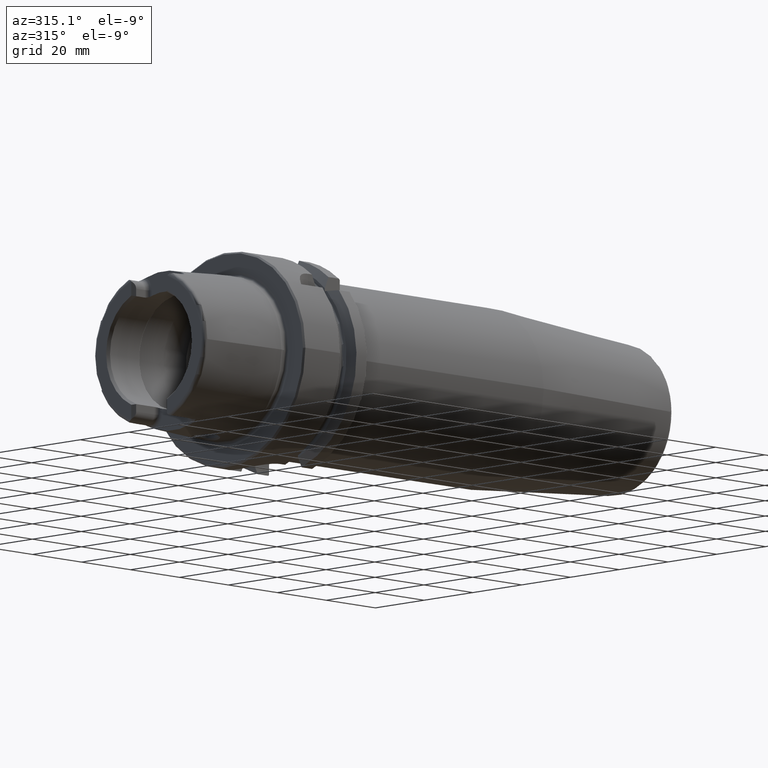
[diagram: clean part render]
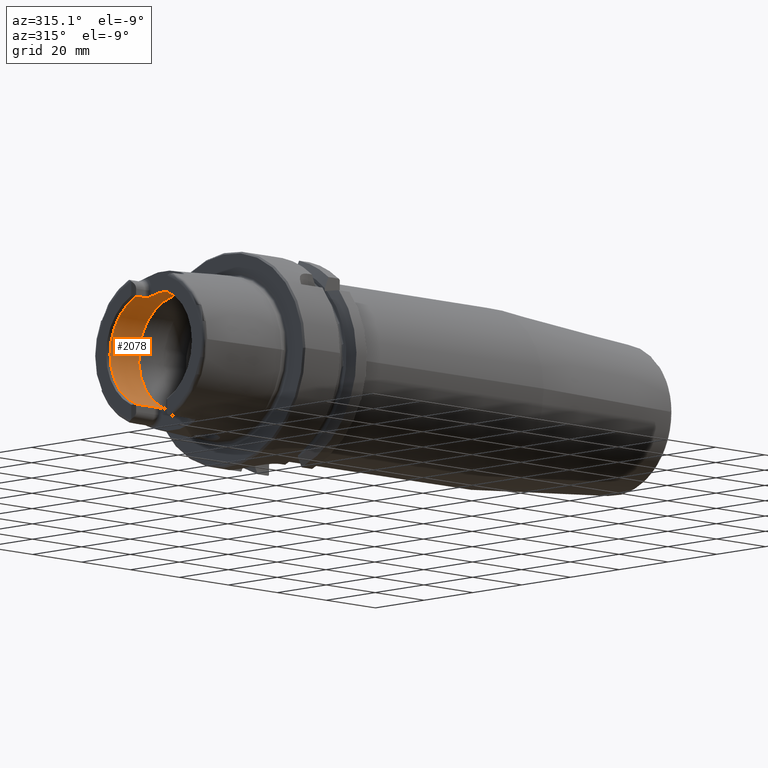
[diagram: same view with one face highlighted and labeled with its STEP entity id]
A machine part, auxiliary view. The second image highlights one B-rep face of the part: STEP entity #2078.
In plain terms, the highlighted cylindrical surface (bore or boss wall) has radius 17 mm, axis along (-1, 0, 0).
Its self-contained STEP definition (entity closure, byte-faithful):
#103=B_SPLINE_CURVE_WITH_KNOTS('',3,(#4336,#4337,#4338,#4339,#4340,#4341,
#4342,#4343,#4344,#4345),.UNSPECIFIED.,.F.,.F.,(4,2,2,2,4),(0.229569660485746,
0.289239803007022,0.348909945528297,0.405407845050218,0.46190574457214),
 .UNSPECIFIED.);
#104=B_SPLINE_CURVE_WITH_KNOTS('',3,(#4354,#4355,#4356,#4357,#4358,#4359,
#4360,#4361,#4362,#4363),.UNSPECIFIED.,.F.,.F.,(4,2,2,2,4),(0.46190574457214,
0.519239917776744,0.576574090981348,0.635410522815223,0.694246954649097),
 .UNSPECIFIED.);
#105=B_SPLINE_CURVE_WITH_KNOTS('',3,(#4372,#4373,#4374,#4375,#4376,#4377,
#4378,#4379,#4380,#4381),.UNSPECIFIED.,.F.,.F.,(4,2,2,2,4),(0.461905744572139,
0.518403644094061,0.574901543615982,0.634571686137257,0.694241828658533),
 .UNSPECIFIED.);
#106=B_SPLINE_CURVE_WITH_KNOTS('',3,(#4395,#4396,#4397,#4398,#4399,#4400,
#4401,#4402,#4403,#4404),.UNSPECIFIED.,.F.,.F.,(4,2,2,2,4),(0.229569660485747,
0.289239803007022,0.348909945528297,0.405407845050218,0.46190574457214),
 .UNSPECIFIED.);
#214=CYLINDRICAL_SURFACE('',#2321,17.);
#314=FACE_OUTER_BOUND('',#439,.T.);
#439=EDGE_LOOP('',(#1849,#1850,#1851,#1852,#1853,#1854,#1855,#1856,#1857,
#1858,#1859,#1860,#1861,#1862,#1863,#1864,#1865));
#484=LINE('',#3175,#588);
#490=LINE('',#3191,#594);
#496=LINE('',#3246,#600);
#500=LINE('',#3312,#604);
#562=LINE('',#4419,#666);
#588=VECTOR('',#2489,10.);
#594=VECTOR('',#2503,10.);
#600=VECTOR('',#2525,10.);
#604=VECTOR('',#2549,10.);
#666=VECTOR('',#2869,17.);
#764=CIRCLE('',#2309,17.);
#769=CIRCLE('',#2320,17.);
#770=CIRCLE('',#2322,17.);
#771=CIRCLE('',#2323,17.);
#772=CIRCLE('',#2324,17.);
#773=CIRCLE('',#2325,17.);
#774=CIRCLE('',#2326,17.);
#837=VERTEX_POINT('',#3128);
#844=VERTEX_POINT('',#3174);
#847=VERTEX_POINT('',#3181);
#850=VERTEX_POINT('',#3189);
#858=VERTEX_POINT('',#3236);
#861=VERTEX_POINT('',#3244);
#868=VERTEX_POINT('',#3279);
#873=VERTEX_POINT('',#3311);
#980=VERTEX_POINT('',#4334);
#982=VERTEX_POINT('',#4353);
#984=VERTEX_POINT('',#4371);
#985=VERTEX_POINT('',#4388);
#987=VERTEX_POINT('',#4415);
#988=VERTEX_POINT('',#4416);
#989=VERTEX_POINT('',#4418);
#1065=EDGE_CURVE('',#844,#837,#484,.T.);
#1073=EDGE_CURVE('',#847,#850,#490,.T.);
#1086=EDGE_CURVE('',#858,#861,#496,.T.);
#1100=EDGE_CURVE('',#873,#868,#500,.T.);
#1266=EDGE_CURVE('',#980,#861,#103,.T.);
#1270=EDGE_CURVE('',#873,#982,#104,.T.);
#1275=EDGE_CURVE('',#844,#984,#105,.T.);
#1279=EDGE_CURVE('',#985,#984,#764,.T.);
#1283=EDGE_CURVE('',#985,#850,#106,.T.);
#1287=EDGE_CURVE('',#980,#982,#769,.T.);
#1288=EDGE_CURVE('',#987,#988,#770,.T.);
#1289=EDGE_CURVE('',#987,#989,#562,.T.);
#1290=EDGE_CURVE('',#858,#989,#771,.T.);
#1291=EDGE_CURVE('',#847,#868,#772,.T.);
#1292=EDGE_CURVE('',#989,#837,#773,.T.);
#1293=EDGE_CURVE('',#988,#987,#774,.T.);
#1849=ORIENTED_EDGE('',*,*,#1288,.F.);
#1850=ORIENTED_EDGE('',*,*,#1289,.T.);
#1851=ORIENTED_EDGE('',*,*,#1290,.F.);
#1852=ORIENTED_EDGE('',*,*,#1086,.T.);
#1853=ORIENTED_EDGE('',*,*,#1266,.F.);
#1854=ORIENTED_EDGE('',*,*,#1287,.T.);
#1855=ORIENTED_EDGE('',*,*,#1270,.F.);
#1856=ORIENTED_EDGE('',*,*,#1100,.T.);
#1857=ORIENTED_EDGE('',*,*,#1291,.F.);
#1858=ORIENTED_EDGE('',*,*,#1073,.T.);
#1859=ORIENTED_EDGE('',*,*,#1283,.F.);
#1860=ORIENTED_EDGE('',*,*,#1279,.T.);
#1861=ORIENTED_EDGE('',*,*,#1275,.F.);
#1862=ORIENTED_EDGE('',*,*,#1065,.T.);
#1863=ORIENTED_EDGE('',*,*,#1292,.F.);
#1864=ORIENTED_EDGE('',*,*,#1289,.F.);
#1865=ORIENTED_EDGE('',*,*,#1293,.F.);
#2078=ADVANCED_FACE('',(#314),#214,.F.);
#2309=AXIS2_PLACEMENT_3D('',#4389,#2839,#2840);
#2320=AXIS2_PLACEMENT_3D('',#4413,#2863,#2864);
#2321=AXIS2_PLACEMENT_3D('',#4414,#2865,#2866);
#2322=AXIS2_PLACEMENT_3D('',#4417,#2867,#2868);
#2323=AXIS2_PLACEMENT_3D('',#4420,#2870,#2871);
#2324=AXIS2_PLACEMENT_3D('',#4421,#2872,#2873);
#2325=AXIS2_PLACEMENT_3D('',#4422,#2874,#2875);
#2326=AXIS2_PLACEMENT_3D('',#4423,#2876,#2877);
#2489=DIRECTION('',(-1.,0.,0.));
#2503=DIRECTION('',(1.,0.,0.));
#2525=DIRECTION('',(1.,0.,0.));
#2549=DIRECTION('',(-1.,0.,0.));
#2839=DIRECTION('center_axis',(-1.,0.,0.));
#2840=DIRECTION('ref_axis',(0.,1.,0.));
#2863=DIRECTION('center_axis',(-1.,0.,0.));
#2864=DIRECTION('ref_axis',(0.,1.,0.));
#2865=DIRECTION('center_axis',(-1.,0.,0.));
#2866=DIRECTION('ref_axis',(0.,1.,0.));
#2867=DIRECTION('center_axis',(-1.,0.,0.));
#2868=DIRECTION('ref_axis',(0.,0.,1.));
#2869=DIRECTION('',(-1.,0.,0.));
#2870=DIRECTION('center_axis',(1.,0.,0.));
#2871=DIRECTION('ref_axis',(0.,-1.,0.));
#2872=DIRECTION('center_axis',(1.,0.,0.));
#2873=DIRECTION('ref_axis',(0.,-1.,0.));
#2874=DIRECTION('center_axis',(1.,0.,0.));
#2875=DIRECTION('ref_axis',(0.,-1.,0.));
#2876=DIRECTION('center_axis',(-1.,0.,0.));
#2877=DIRECTION('ref_axis',(0.,0.,1.));
#3128=CARTESIAN_POINT('',(-31.,-6.27,-15.8014904360317));
#3174=CARTESIAN_POINT('',(-23.5,-6.27,-15.8014904360317));
#3175=CARTESIAN_POINT('',(-25.6423502691896,-6.27,-15.8014904360317));
#3181=CARTESIAN_POINT('',(-31.,6.27,-15.8014904360317));
#3189=CARTESIAN_POINT('',(-23.5,6.27,-15.8014904360317));
#3191=CARTESIAN_POINT('',(-25.6423502691896,6.27,-15.8014904360317));
#3236=CARTESIAN_POINT('',(-31.,-6.27,15.8014904360317));
#3244=CARTESIAN_POINT('',(-27.5,-6.27,15.8014904360317));
#3246=CARTESIAN_POINT('',(-25.6423502691896,-6.27,15.8014904360317));
#3279=CARTESIAN_POINT('',(-31.,6.27,15.8014904360317));
#3311=CARTESIAN_POINT('',(-27.5,6.27,15.8014904360317));
#3312=CARTESIAN_POINT('',(-25.6423502691896,6.27,15.8014904360317));
#4334=CARTESIAN_POINT('',(-26.,-4.77,16.3170800083839));
#4336=CARTESIAN_POINT('Ctrl Pts',(-26.,-4.77,16.3170800083839));
#4337=CARTESIAN_POINT('Ctrl Pts',(-26.,-4.96091029208457,16.2612708750845));
#4338=CARTESIAN_POINT('Ctrl Pts',(-26.0385404635846,-5.16378617408596,16.1979610859593));
#4339=CARTESIAN_POINT('Ctrl Pts',(-26.1950909803916,-5.53690543536203,16.0742436586733));
#4340=CARTESIAN_POINT('Ctrl Pts',(-26.3130861154278,-5.70721093092864,16.01400454532));
#4341=CARTESIAN_POINT('Ctrl Pts',(-26.5811791540138,-5.96960590306613,15.9179857910505));
#4342=CARTESIAN_POINT('Ctrl Pts',(-26.7467155703026,-6.082078486584,15.8749745356799));
#4343=CARTESIAN_POINT('Ctrl Pts',(-27.1119229195206,-6.23232125085234,15.8165946761251));
#4344=CARTESIAN_POINT('Ctrl Pts',(-27.3116736682603,-6.27,15.8014904360317));
#4345=CARTESIAN_POINT('Ctrl Pts',(-27.5,-6.27,15.8014904360317));
#4353=CARTESIAN_POINT('',(-26.,4.77,16.3170800083839));
#4354=CARTESIAN_POINT('Ctrl Pts',(-27.5,6.27,15.8014904360317));
#4355=CARTESIAN_POINT('Ctrl Pts',(-27.308886089318,6.27,15.8014904360317));
#4356=CARTESIAN_POINT('Ctrl Pts',(-27.1064099842243,6.23121026569193,15.8170435837256));
#4357=CARTESIAN_POINT('Ctrl Pts',(-26.7371019784685,6.07691823919465,15.8769617281184));
#4358=CARTESIAN_POINT('Ctrl Pts',(-26.5701870418163,5.96150738537594,15.9210500039306));
#4359=CARTESIAN_POINT('Ctrl Pts',(-26.3050641818979,5.69638452545756,16.017853695422));
#4360=CARTESIAN_POINT('Ctrl Pts',(-26.1900212186221,5.52750941197086,16.0774506535614));
#4361=CARTESIAN_POINT('Ctrl Pts',(-26.0374824299787,5.15846789211413,16.1996292802954));
#4362=CARTESIAN_POINT('Ctrl Pts',(-26.,4.95824289522375,16.2620506397863));
#4363=CARTESIAN_POINT('Ctrl Pts',(-26.,4.77,16.3170800083839));
#4371=CARTESIAN_POINT('',(-22.,-4.77,-16.3170800083839));
#4372=CARTESIAN_POINT('Ctrl Pts',(-23.5,-6.27,-15.8014904360317));
#4373=CARTESIAN_POINT('Ctrl Pts',(-23.3116736682603,-6.27,-15.8014904360317));
#4374=CARTESIAN_POINT('Ctrl Pts',(-23.1119229195206,-6.23232125085234,-15.8165946761251));
#4375=CARTESIAN_POINT('Ctrl Pts',(-22.7467155703026,-6.082078486584,-15.8749745356799));
#4376=CARTESIAN_POINT('Ctrl Pts',(-22.5811791540138,-5.96960590306613,-15.9179857910505));
#4377=CARTESIAN_POINT('Ctrl Pts',(-22.3130861154278,-5.70721093092864,-16.01400454532));
#4378=CARTESIAN_POINT('Ctrl Pts',(-22.1950909803916,-5.53690543536204,-16.0742436586733));
#4379=CARTESIAN_POINT('Ctrl Pts',(-22.0385404635846,-5.16378617408596,-16.1979610859593));
#4380=CARTESIAN_POINT('Ctrl Pts',(-22.,-4.96091029208457,-16.2612708750845));
#4381=CARTESIAN_POINT('Ctrl Pts',(-22.,-4.77,-16.3170800083839));
#4388=CARTESIAN_POINT('',(-22.,4.77,-16.3170800083839));
#4389=CARTESIAN_POINT('Origin',(-22.,0.,0.));
#4395=CARTESIAN_POINT('Ctrl Pts',(-22.,4.77,-16.3170800083839));
#4396=CARTESIAN_POINT('Ctrl Pts',(-22.,4.96091029208457,-16.2612708750845));
#4397=CARTESIAN_POINT('Ctrl Pts',(-22.0385404635846,5.16378617408596,-16.1979610859593));
#4398=CARTESIAN_POINT('Ctrl Pts',(-22.1950909803916,5.53690543536204,-16.0742436586733));
#4399=CARTESIAN_POINT('Ctrl Pts',(-22.3130861154278,5.70721093092864,-16.01400454532));
#4400=CARTESIAN_POINT('Ctrl Pts',(-22.5811791540138,5.96960590306613,-15.9179857910505));
#4401=CARTESIAN_POINT('Ctrl Pts',(-22.7467155703026,6.082078486584,-15.8749745356799));
#4402=CARTESIAN_POINT('Ctrl Pts',(-23.1119229195206,6.23232125085234,-15.8165946761251));
#4403=CARTESIAN_POINT('Ctrl Pts',(-23.3116736682603,6.27,-15.8014904360317));
#4404=CARTESIAN_POINT('Ctrl Pts',(-23.5,6.27,-15.8014904360317));
#4413=CARTESIAN_POINT('Origin',(-26.,0.,0.));
#4414=CARTESIAN_POINT('Origin',(-25.6423502691896,0.,0.));
#4415=CARTESIAN_POINT('',(-19.2847005383793,-17.,2.0818995585505E-15));
#4416=CARTESIAN_POINT('',(-19.2847005383793,-2.0818995585505E-15,-17.));
#4417=CARTESIAN_POINT('Origin',(-19.2847005383793,0.,0.));
#4418=CARTESIAN_POINT('',(-31.,-17.,2.0818995585505E-15));
#4419=CARTESIAN_POINT('',(-25.6423502691896,-17.,2.0818995585505E-15));
#4420=CARTESIAN_POINT('Origin',(-31.,0.,0.));
#4421=CARTESIAN_POINT('Origin',(-31.,0.,0.));
#4422=CARTESIAN_POINT('Origin',(-31.,0.,0.));
#4423=CARTESIAN_POINT('Origin',(-19.2847005383793,0.,0.));